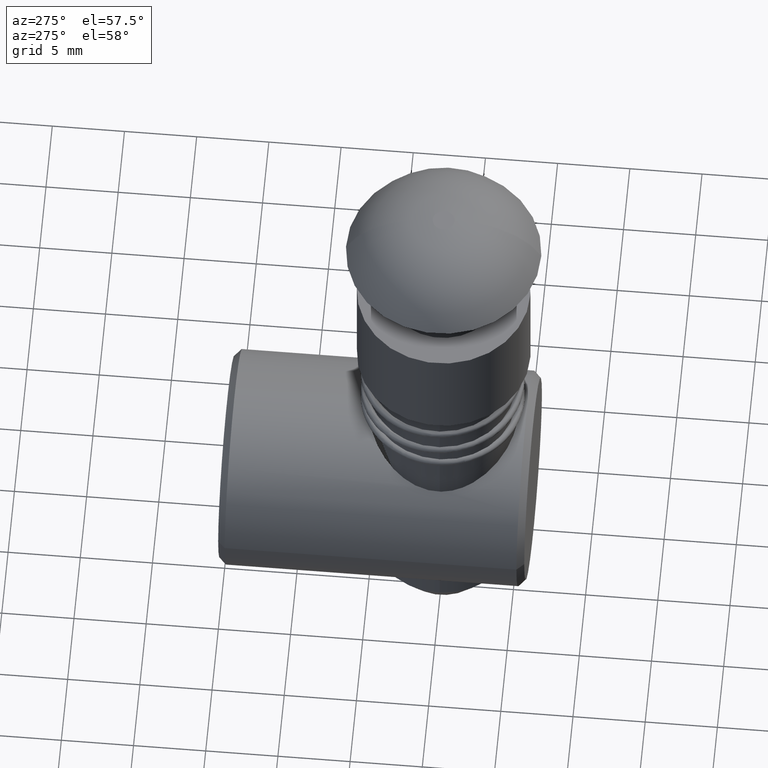
[diagram: clean part render]
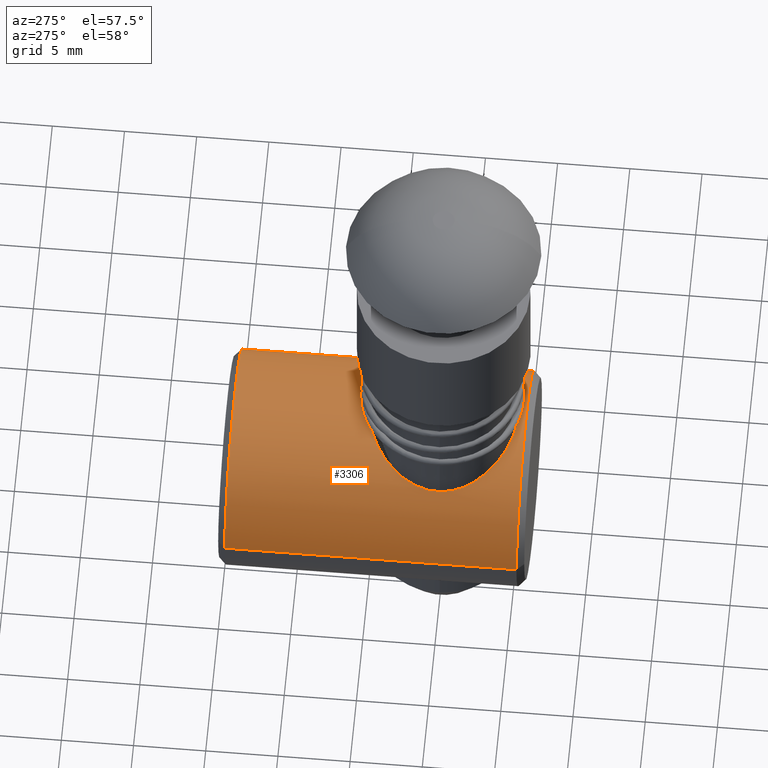
[diagram: same view with one face highlighted and labeled with its STEP entity id]
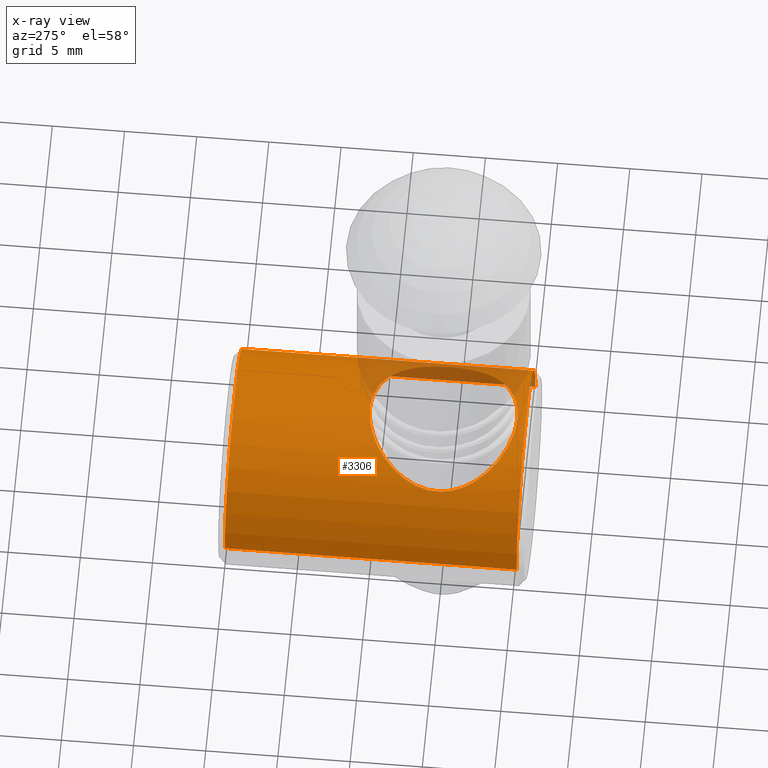
[diagram: x-ray of the same camera — body ghosted, the highlighted face saturated]
A machine part, auxiliary view. The second image highlights one B-rep face of the part: STEP entity #3306.
The next image is the same camera in x-ray: the body ghosted, the highlighted face saturated — about 7% of this face is hidden behind the body in this view.
In plain terms, the highlighted cylindrical surface (partial cylindrical patch) has radius 7.5 mm, axis along (0, -1, 0).
Its self-contained STEP definition (entity closure, byte-faithful):
#397 = AXIS2_PLACEMENT_3D ( 'NONE', #1243, #1244, #1245 ) ;
#1086 = CARTESIAN_POINT ( 'NONE',  ( -7.500000000000000000, 9.184850993605147900E-016, -20.69999999999999900 ) ) ;
#1087 = DIRECTION ( 'NONE',  ( 0.0000000000000000000, 0.0000000000000000000, 1.000000000000000000 ) ) ;
#1166 = CARTESIAN_POINT ( 'NONE',  ( -6.153098691866153700E-010, 7.500000001013998700, -1.099999998986000800 ) ) ;
#1167 = CARTESIAN_POINT ( 'NONE',  ( 0.3496164012202615500, 7.500000001042682400, -1.099999998943820100 ) ) ;
#1168 = CARTESIAN_POINT ( 'NONE',  ( 0.6914362129772126900, 7.475695559141414000, -1.135554141190742200 ) ) ;
#1169 = CARTESIAN_POINT ( 'NONE',  ( 1.360681868580407400, 7.383268448465046600, -1.273008956173855100 ) ) ;
#1170 = CARTESIAN_POINT ( 'NONE',  ( 1.690447858410435900, 7.313986219735893400, -1.376687795218460400 ) ) ;
#1171 = CARTESIAN_POINT ( 'NONE',  ( 2.306132365387485900, 7.143791843118281200, -1.638891790352776000 ) ) ;
#1172 = CARTESIAN_POINT ( 'NONE',  ( 2.596808253594298200, 7.042267782147016300, -1.798275100309305600 ) ) ;
#1173 = CARTESIAN_POINT ( 'NONE',  ( 3.141686526410404100, 6.816652726314627500, -2.169069466207108400 ) ) ;
#1174 = CARTESIAN_POINT ( 'NONE',  ( 3.389967120967080300, 6.695170122893214800, -2.376146700272126400 ) ) ;
#1175 = CARTESIAN_POINT ( 'NONE',  ( 3.844081779105112500, 6.445169922606530700, -2.832988503935625500 ) ) ;
#1176 = CARTESIAN_POINT ( 'NONE',  ( 4.051093514538235000, 6.315546271784046300, -3.085119286679213000 ) ) ;
#1177 = CARTESIAN_POINT ( 'NONE',  ( 4.410937099307409100, 6.069688400612723600, -3.619791785978292000 ) ) ;
#1178 = CARTESIAN_POINT ( 'NONE',  ( 4.565513856201321600, 5.952591002168078100, -3.903351153914300700 ) ) ;
#1179 = CARTESIAN_POINT ( 'NONE',  ( 4.823029607927026100, 5.745923930171536600, -4.509763893873899800 ) ) ;
#1180 = CARTESIAN_POINT ( 'NONE',  ( 4.925695938226478000, 5.656501909284315800, -4.835109034813541500 ) ) ;
#1181 = CARTESIAN_POINT ( 'NONE',  ( 5.028830539575808200, 5.564439503276958000, -5.334138948845265700 ) ) ;
#1182 = CARTESIAN_POINT ( 'NONE',  ( 5.055134384343877400, 5.540415160550993300, -5.503200008122540500 ) ) ;
#1183 = CARTESIAN_POINT ( 'NONE',  ( 5.090726867406798000, 5.507729455637926800, -5.847276547535091900 ) ) ;
#1184 = CARTESIAN_POINT ( 'NONE',  ( 5.099862157972778800, 5.499218672158316500, -6.022877177509443000 ) ) ;
#1185 = CARTESIAN_POINT ( 'NONE',  ( 5.100270944092049100, 5.498839553487644400, -6.542202272244819200 ) ) ;
#1186 = CARTESIAN_POINT ( 'NONE',  ( 5.065661354523730800, 5.531511498501504100, -6.883818786282707200 ) ) ;
#1187 = CARTESIAN_POINT ( 'NONE',  ( 4.927793774103722800, 5.654678853540149300, -7.558448236442205600 ) ) ;
#1188 = CARTESIAN_POINT ( 'NONE',  ( 4.827320803224050200, 5.742330976647387800, -7.878378235194223800 ) ) ;
#1189 = CARTESIAN_POINT ( 'NONE',  ( 4.633814613414390500, 5.897847906156807900, -8.336646212621689100 ) ) ;
#1190 = CARTESIAN_POINT ( 'NONE',  ( 4.561750748574526800, 5.953978750104658600, -8.486291753267014600 ) ) ;
#1191 = CARTESIAN_POINT ( 'NONE',  ( 4.406042250954937100, 6.070109103765602800, -8.773614492494356700 ) ) ;
#1192 = CARTESIAN_POINT ( 'NONE',  ( 4.322174712433044500, 6.130304436257682200, -8.911954795766394700 ) ) ;
#1193 = CARTESIAN_POINT ( 'NONE',  ( 4.052835006252895100, 6.314414883112776900, -9.312571388481739400 ) ) ;
#1194 = CARTESIAN_POINT ( 'NONE',  ( 3.849855740995259200, 6.441791386046471500, -9.560638262088557900 ) ) ;
#1195 = CARTESIAN_POINT ( 'NONE',  ( 3.392925628510262500, 6.693737458790486100, -10.02143094069303000 ) ) ;
#1196 = CARTESIAN_POINT ( 'NONE',  ( 3.143119138218907900, 6.815815563487344500, -10.22945444412638400 ) ) ;
#1197 = CARTESIAN_POINT ( 'NONE',  ( 2.606012734422058900, 7.038695713024135400, -10.59595253185903600 ) ) ;
#1198 = CARTESIAN_POINT ( 'NONE',  ( 2.316846517409005400, 7.140484696415044600, -10.75596094404549800 ) ) ;
#1199 = CARTESIAN_POINT ( 'NONE',  ( 1.694461952048373000, 7.313213943132534900, -11.02217343134385900 ) ) ;
#1200 = CARTESIAN_POINT ( 'NONE',  ( 1.371476850443141200, 7.381319947837916100, -11.12407762759997000 ) ) ;
#1201 = CARTESIAN_POINT ( 'NONE',  ( 0.7002319371012905000, 7.474925294470489600, -11.26331556079565000 ) ) ;
#1202 = CARTESIAN_POINT ( 'NONE',  ( 0.3501606760595727400, 7.500000000077023700, -11.30000000011327200 ) ) ;
#1203 = CARTESIAN_POINT ( 'NONE',  ( 6.245698675651501800E-016, 7.500000000000000000, -11.30000000000000100 ) ) ;
#1204 = CARTESIAN_POINT ( 'NONE',  ( 6.245698675651501800E-016, 7.500000000000000000, -11.30000000000000100 ) ) ;
#1205 = CARTESIAN_POINT ( 'NONE',  ( -0.3496164033444710800, 7.499999999923162800, -11.29999999988700800 ) ) ;
#1206 = CARTESIAN_POINT ( 'NONE',  ( -0.6914362136302717500, 7.475695559077494500, -11.26444585871508000 ) ) ;
#1207 = CARTESIAN_POINT ( 'NONE',  ( -1.360681869072028800, 7.383268448370881000, -11.12699104368522100 ) ) ;
#1208 = CARTESIAN_POINT ( 'NONE',  ( -1.690447858873054500, 7.313986219627686600, -11.02331220461779500 ) ) ;
#1209 = CARTESIAN_POINT ( 'NONE',  ( -2.306132365783339000, 7.143791842989177400, -10.76110820944537500 ) ) ;
#1210 = CARTESIAN_POINT ( 'NONE',  ( -2.596808253912179500, 7.042267782029107100, -10.60172489950252500 ) ) ;
#1211 = CARTESIAN_POINT ( 'NONE',  ( -3.141686526688030100, 6.816652726185958900, -10.23093053357581400 ) ) ;
#1212 = CARTESIAN_POINT ( 'NONE',  ( -3.389967121213001800, 6.695170122767232000, -10.02385329950700300 ) ) ;
#1213 = CARTESIAN_POINT ( 'NONE',  ( -3.844081779276722800, 6.445169922502652000, -9.567011495865205700 ) ) ;
#1214 = CARTESIAN_POINT ( 'NONE',  ( -4.051093514681809000, 6.315546271691292900, -9.314880713132870600 ) ) ;
#1215 = CARTESIAN_POINT ( 'NONE',  ( -4.410937099414592700, 6.069688400534149200, -8.780208213837040500 ) ) ;
#1216 = CARTESIAN_POINT ( 'NONE',  ( -4.565513856282054300, 5.952591002105220900, -8.496648845918150200 ) ) ;
#1217 = CARTESIAN_POINT ( 'NONE',  ( -4.823029607953011500, 5.745923930148750400, -7.890236106042350700 ) ) ;
#1218 = CARTESIAN_POINT ( 'NONE',  ( -4.925695938248126500, 5.656501909265285700, -7.564890965103526100 ) ) ;
#1219 = CARTESIAN_POINT ( 'NONE',  ( -5.028830539585110900, 5.564439503268509700, -7.065861051098821100 ) ) ;
#1220 = CARTESIAN_POINT ( 'NONE',  ( -5.055134384348154000, 5.540415160547075500, -6.896799991839345400 ) ) ;
#1221 = CARTESIAN_POINT ( 'NONE',  ( -5.090726867404534100, 5.507729455640000700, -6.552723452483583300 ) ) ;
#1222 = CARTESIAN_POINT ( 'NONE',  ( -5.099862157972260100, 5.499218672158799700, -6.377122822508455100 ) ) ;
#1223 = CARTESIAN_POINT ( 'NONE',  ( -5.100270944093050900, 5.498839553486715400, -5.857797727763976800 ) ) ;
#1224 = CARTESIAN_POINT ( 'NONE',  ( -5.065661354524630500, 5.531511498500251800, -5.516181213756040900 ) ) ;
#1225 = CARTESIAN_POINT ( 'NONE',  ( -4.927793774143620600, 5.654678853504956100, -4.841551763718682000 ) ) ;
#1226 = CARTESIAN_POINT ( 'NONE',  ( -4.827320803259397100, 5.742330976616830900, -4.521621764914947900 ) ) ;
#1227 = CARTESIAN_POINT ( 'NONE',  ( -4.633814613485610000, 5.897847906100641200, -4.063353787534247800 ) ) ;
#1228 = CARTESIAN_POINT ( 'NONE',  ( -4.561750748655496700, 5.953978750042529600, -3.913708246894568100 ) ) ;
#1229 = CARTESIAN_POINT ( 'NONE',  ( -4.406042251046463900, 6.070109103699076400, -3.626385507662364600 ) ) ;
#1230 = CARTESIAN_POINT ( 'NONE',  ( -4.322174712531829500, 6.130304436187837600, -3.488045204391574800 ) ) ;
#1231 = CARTESIAN_POINT ( 'NONE',  ( -4.052835006381872800, 6.314414883029247200, -3.087428611688038900 ) ) ;
#1232 = CARTESIAN_POINT ( 'NONE',  ( -3.849855741155260100, 6.441791385948708800, -2.839361738099786900 ) ) ;
#1233 = CARTESIAN_POINT ( 'NONE',  ( -3.392925628770938000, 6.693737458656293900, -2.378569059542859200 ) ) ;
#1234 = CARTESIAN_POINT ( 'NONE',  ( -3.143119138461132800, 6.815815563374245700, -2.170545556064777100 ) ) ;
#1235 = CARTESIAN_POINT ( 'NONE',  ( -2.606012734733726500, 7.038695712907391500, -1.804047468327756100 ) ) ;
#1236 = CARTESIAN_POINT ( 'NONE',  ( -2.316846517857970200, 7.140484696269842500, -1.644039056181411300 ) ) ;
#1237 = CARTESIAN_POINT ( 'NONE',  ( -1.694461952487823300, 7.313213943031175100, -1.377826568809234600 ) ) ;
#1238 = CARTESIAN_POINT ( 'NONE',  ( -1.371476850902294300, 7.381319947750291100, -1.275922372531183200 ) ) ;
#1239 = CARTESIAN_POINT ( 'NONE',  ( -0.7002319376666372700, 7.474925294415248400, -1.136684439285713200 ) ) ;
#1240 = CARTESIAN_POINT ( 'NONE',  ( -0.3490729724387911000, 7.500000000985361100, -1.099999999028116400 ) ) ;
#1241 = CARTESIAN_POINT ( 'NONE',  ( -6.153098691866153700E-010, 7.500000001013998700, -1.099999998986000800 ) ) ;
#1243 = CARTESIAN_POINT ( 'NONE',  ( 0.0000000000000000000, 0.0000000000000000000, -0.5000000000000004400 ) ) ;
#1244 = DIRECTION ( 'NONE',  ( 0.0000000000000000000, 0.0000000000000000000, 1.000000000000000000 ) ) ;
#1245 = DIRECTION ( 'NONE',  ( 1.000000000000000000, 0.0000000000000000000, 5.782411586589357400E-017 ) ) ;
#1246 = CARTESIAN_POINT ( 'NONE',  ( 7.500000000000000000, 0.0000000000000000000, -20.69999999999999900 ) ) ;
#1247 = DIRECTION ( 'NONE',  ( 0.0000000000000000000, 0.0000000000000000000, 1.000000000000000000 ) ) ;
#1796 = CARTESIAN_POINT ( 'NONE',  ( 0.0000000000000000000, 0.0000000000000000000, -20.69999999999999900 ) ) ;
#1797 = DIRECTION ( 'NONE',  ( 0.0000000000000000000, 0.0000000000000000000, 1.000000000000000000 ) ) ;
#1798 = DIRECTION ( 'NONE',  ( 1.000000000000000000, 0.0000000000000000000, 0.0000000000000000000 ) ) ;
#1829 = AXIS2_PLACEMENT_3D ( 'NONE', #1796, #1797, #1798 ) ;
#1839 = AXIS2_PLACEMENT_3D ( 'NONE', #2086, #2087, #2088 ) ;
#2033 = CARTESIAN_POINT ( 'NONE',  ( 6.245698675651501800E-016, 7.500000000000000000, -11.30000000000000100 ) ) ;
#2040 = CARTESIAN_POINT ( 'NONE',  ( 7.500000000000000000, 9.184850993605149900E-016, -0.5000000000000004400 ) ) ;
#2041 = CARTESIAN_POINT ( 'NONE',  ( -6.153098691866153700E-010, 7.500000001013998700, -1.099999998986000800 ) ) ;
#2049 = CARTESIAN_POINT ( 'NONE',  ( -7.500000000000000000, 9.184850993605147900E-016, -20.69999999999993900 ) ) ;
#2050 = CARTESIAN_POINT ( 'NONE',  ( -7.500000000000000000, 0.0000000000000000000, -0.5000000000000004400 ) ) ;
#2057 = CARTESIAN_POINT ( 'NONE',  ( 7.500000000000000000, 0.0000000000000000000, -20.69999999999999900 ) ) ;
#2086 = CARTESIAN_POINT ( 'NONE',  ( 0.0000000000000000000, 0.0000000000000000000, -20.69999999999993900 ) ) ;
#2087 = DIRECTION ( 'NONE',  ( 0.0000000000000000000, 0.0000000000000000000, 1.000000000000000000 ) ) ;
#2088 = DIRECTION ( 'NONE',  ( 1.000000000000000000, 0.0000000000000000000, -7.864079757761525000E-015 ) ) ;
#2684 = EDGE_CURVE ( 'NONE', #3514, #3515, #3350, .T. ) ;
#2695 = EDGE_CURVE ( 'NONE', #3506, #3498, #3558, .T. ) ;
#2696 = EDGE_CURVE ( 'NONE', #3498, #3506, #3557, .T. ) ;
#2742 = CIRCLE ( 'NONE', #1839, 7.500000000000000000 ) ;
#2753 = FACE_OUTER_BOUND ( 'NONE', #3149, .T. ) ;
#2754 = FACE_BOUND ( 'NONE', #3148, .T. ) ;
#2761 = CYLINDRICAL_SURFACE ( 'NONE', #1829, 7.500000000000000000 ) ;
#2863 = EDGE_CURVE ( 'NONE', #3505, #3515, #3360, .T. ) ;
#2864 = EDGE_CURVE ( 'NONE', #3522, #3505, #3359, .T. ) ;
#3019 = ORIENTED_EDGE ( 'NONE', *, *, #3575, .T. ) ;
#3020 = ORIENTED_EDGE ( 'NONE', *, *, #2695, .F. ) ;
#3021 = ORIENTED_EDGE ( 'NONE', *, *, #2696, .F. ) ;
#3043 = ORIENTED_EDGE ( 'NONE', *, *, #2684, .T. ) ;
#3045 = ORIENTED_EDGE ( 'NONE', *, *, #2863, .F. ) ;
#3046 = ORIENTED_EDGE ( 'NONE', *, *, #2864, .F. ) ;
#3148 = EDGE_LOOP ( 'NONE', ( #3020, #3021 ) ) ;
#3149 = EDGE_LOOP ( 'NONE', ( #3019, #3043, #3045, #3046 ) ) ;
#3306 = ADVANCED_FACE ( 'NONE', ( #2754, #2753 ), #2761, .T. ) ;
#3350 = LINE ( 'NONE', #1086, #3352 ) ;
#3352 = VECTOR ( 'NONE', #1087, 1000.000000000000000 ) ;
#3359 = LINE ( 'NONE', #1246, #3361 ) ;
#3360 = CIRCLE ( 'NONE', #397, 7.500000000000000000 ) ;
#3361 = VECTOR ( 'NONE', #1247, 1000.000000000000000 ) ;
#3498 = VERTEX_POINT ( 'NONE', #2033 ) ;
#3505 = VERTEX_POINT ( 'NONE', #2040 ) ;
#3506 = VERTEX_POINT ( 'NONE', #2041 ) ;
#3514 = VERTEX_POINT ( 'NONE', #2049 ) ;
#3515 = VERTEX_POINT ( 'NONE', #2050 ) ;
#3522 = VERTEX_POINT ( 'NONE', #2057 ) ;
#3557 = B_SPLINE_CURVE_WITH_KNOTS ( 'NONE', 3,
 ( #1204, #1205, #1206, #1207, #1208, #1209, #1210, #1211, #1212, #1213, #1214, #1215, #1216, #1217, #1218, #1219, #1220, #1221, #1222, #1223, #1224, #1225, #1226, #1227, #1228, #1229, #1230, #1231, #1232, #1233, #1234, #1235, #1236, #1237, #1238, #1239, #1240, #1241 ),
 .UNSPECIFIED., .F., .F.,
 ( 4, 2, 2, 2, 2, 2, 2, 2, 2, 2, 2, 2, 2, 2, 2, 2, 2, 2, 4 ),
 ( 0.01651316110675932500, 0.01754362946284052100, 0.01857409781892172000, 0.01960456617500291500, 0.02063503453108411100, 0.02166550288716530600, 0.02269597124324650200, 0.02372643959932770100, 0.02424167377736830000, 0.02475690795540889900, 0.02578737631149009800, 0.02681784466757129700, 0.02733307884561189700, 0.02784831302365249600, 0.02887878137973369500, 0.02990924973581489400, 0.03093971809189609300, 0.03197018644797729200, 0.03300065480405849100 ),
 .UNSPECIFIED. ) ;
#3558 = B_SPLINE_CURVE_WITH_KNOTS ( 'NONE', 3,
 ( #1166, #1167, #1168, #1169, #1170, #1171, #1172, #1173, #1174, #1175, #1176, #1177, #1178, #1179, #1180, #1181, #1182, #1183, #1184, #1185, #1186, #1187, #1188, #1189, #1190, #1191, #1192, #1193, #1194, #1195, #1196, #1197, #1198, #1199, #1200, #1201, #1202, #1203 ),
 .UNSPECIFIED., .F., .F.,
 ( 4, 2, 2, 2, 2, 2, 2, 2, 2, 2, 2, 2, 2, 2, 2, 2, 2, 2, 4 ),
 ( 0.0000000000000000000, 0.001032072569172460000, 0.002064145138344920000, 0.003096217707517379800, 0.004128290276689840000, 0.005160362845862299400, 0.006192435415034759600, 0.007224507984207220700, 0.007740544268793451300, 0.008256580553379681800, 0.009288653122552144700, 0.01032072569172460700, 0.01083676197631083600, 0.01135279826089706300, 0.01238487083006951600, 0.01341694339924197000, 0.01444901596841442200, 0.01548108853758687500, 0.01651316110675932500 ),
 .UNSPECIFIED. ) ;
#3575 = EDGE_CURVE ( 'NONE', #3522, #3514, #2742, .T. ) ;